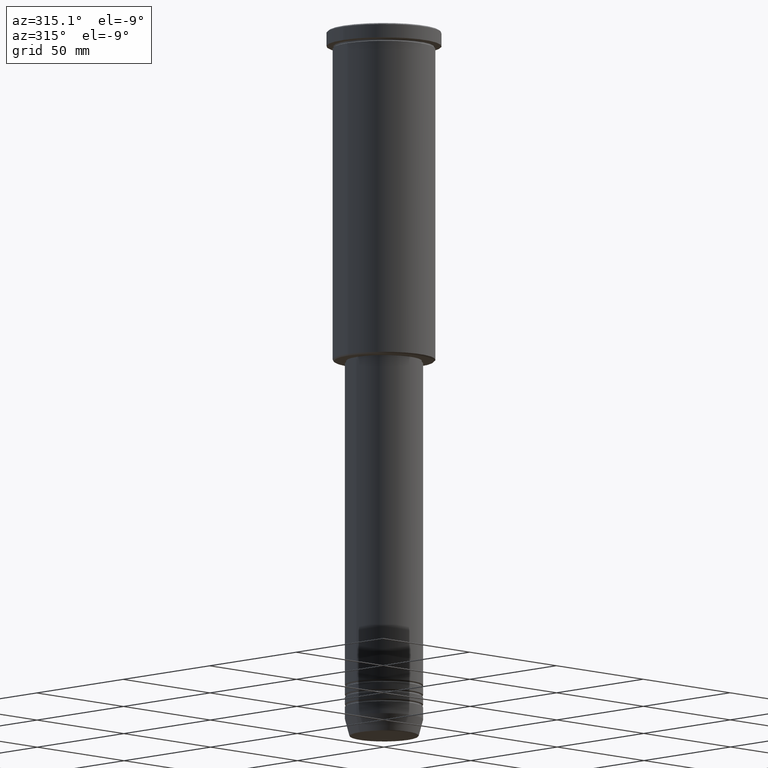
[diagram: clean part render]
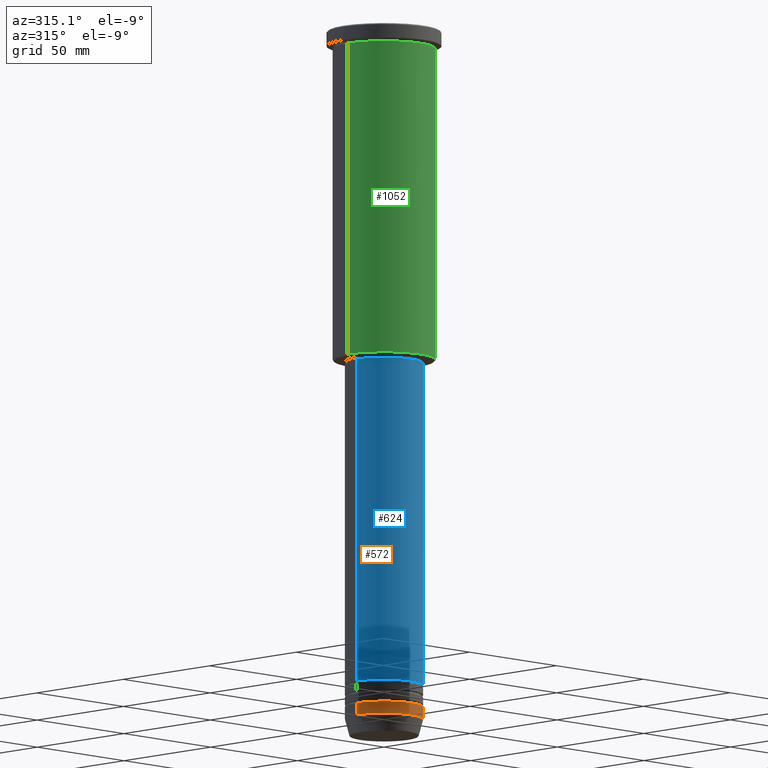
[diagram: same view with three faces highlighted in distinct colors, each labeled with its STEP entity id]
A machine part, auxiliary view with three faces highlighted in distinct colors.
Their STEP definitions:

[orange] entity #572 — the highlighted cylindrical surface (partial cylindrical patch) has radius 16 mm, axis along (-0, -0, 1).
#5 = CARTESIAN_POINT ( 'NONE',  ( -16.00000000000000000, 1.959434878635765131E-15, -279.0000000000000000 ) ) ;
#15 = DIRECTION ( 'NONE',  ( -0.000000000000000000, -0.000000000000000000, 1.000000000000000000 ) ) ;
#37 = CYLINDRICAL_SURFACE ( 'NONE', #637, 16.00000000000000000 ) ;
#78 = VECTOR ( 'NONE', #336, 1000.000000000000000 ) ;
#120 = DIRECTION ( 'NONE',  ( -0.000000000000000000, -0.000000000000000000, 1.000000000000000000 ) ) ;
#124 = VERTEX_POINT ( 'NONE', #827 ) ;
#163 = LINE ( 'NONE', #716, #78 ) ;
#188 = DIRECTION ( 'NONE',  ( 1.000000000000000000, 0.000000000000000000, 0.000000000000000000 ) ) ;
#209 = EDGE_LOOP ( 'NONE', ( #1046, #1024, #236, #1147 ) ) ;
#236 = ORIENTED_EDGE ( 'NONE', *, *, #867, .T. ) ;
#256 = DIRECTION ( 'NONE',  ( 1.000000000000000000, 0.000000000000000000, 0.000000000000000000 ) ) ;
#299 = DIRECTION ( 'NONE',  ( 1.000000000000000000, 0.000000000000000000, 0.000000000000000000 ) ) ;
#336 = DIRECTION ( 'NONE',  ( -0.000000000000000000, -0.000000000000000000, 1.000000000000000000 ) ) ;
#428 = CARTESIAN_POINT ( 'NONE',  ( 0.000000000000000000, 0.000000000000000000, -284.0000000000000568 ) ) ;
#473 = CARTESIAN_POINT ( 'NONE',  ( 0.000000000000000000, 0.000000000000000000, -279.0000000000000000 ) ) ;
#486 = VERTEX_POINT ( 'NONE', #5 ) ;
#498 = LINE ( 'NONE', #1056, #1106 ) ;
#549 = EDGE_CURVE ( 'NONE', #486, #588, #738, .T. ) ;
#572 = ADVANCED_FACE ( 'NONE', ( #749 ), #37, .T. ) ;
#588 = VERTEX_POINT ( 'NONE', #1114 ) ;
#637 = AXIS2_PLACEMENT_3D ( 'NONE', #844, #15, #299 ) ;
#665 = EDGE_CURVE ( 'NONE', #124, #486, #498, .T. ) ;
#671 = AXIS2_PLACEMENT_3D ( 'NONE', #428, #724, #256 ) ;
#716 = CARTESIAN_POINT ( 'NONE',  ( 16.00000000000000000, 0.000000000000000000, 0.000000000000000000 ) ) ;
#724 = DIRECTION ( 'NONE',  ( -0.000000000000000000, -0.000000000000000000, 1.000000000000000000 ) ) ;
#738 = CIRCLE ( 'NONE', #1088, 16.00000000000000000 ) ;
#749 = FACE_OUTER_BOUND ( 'NONE', #209, .T. ) ;
#803 = CARTESIAN_POINT ( 'NONE',  ( 16.00000000000000000, 0.000000000000000000, -284.0000000000000568 ) ) ;
#827 = CARTESIAN_POINT ( 'NONE',  ( -16.00000000000000000, 1.959434878635765131E-15, -284.0000000000000568 ) ) ;
#844 = CARTESIAN_POINT ( 'NONE',  ( 0.000000000000000000, 0.000000000000000000, 0.000000000000000000 ) ) ;
#867 = EDGE_CURVE ( 'NONE', #1123, #588, #163, .T. ) ;
#1024 = ORIENTED_EDGE ( 'NONE', *, *, #1066, .T. ) ;
#1046 = ORIENTED_EDGE ( 'NONE', *, *, #665, .F. ) ;
#1056 = CARTESIAN_POINT ( 'NONE',  ( -16.00000000000000000, 1.959434878635765131E-15, 0.000000000000000000 ) ) ;
#1064 = DIRECTION ( 'NONE',  ( -0.000000000000000000, -0.000000000000000000, 1.000000000000000000 ) ) ;
#1066 = EDGE_CURVE ( 'NONE', #124, #1123, #1090, .T. ) ;
#1088 = AXIS2_PLACEMENT_3D ( 'NONE', #473, #120, #188 ) ;
#1090 = CIRCLE ( 'NONE', #671, 16.00000000000000000 ) ;
#1106 = VECTOR ( 'NONE', #1064, 1000.000000000000000 ) ;
#1114 = CARTESIAN_POINT ( 'NONE',  ( 16.00000000000000000, 0.000000000000000000, -279.0000000000000000 ) ) ;
#1123 = VERTEX_POINT ( 'NONE', #803 ) ;
#1147 = ORIENTED_EDGE ( 'NONE', *, *, #549, .F. ) ;

[blue] entity #624 — the highlighted cylindrical surface (partial cylindrical patch) has radius 16 mm, axis along (-0, -0, 1).
#19 = CARTESIAN_POINT ( 'NONE',  ( 16.00000000000000000, 0.000000000000000000, 0.000000000000000000 ) ) ;
#55 = CARTESIAN_POINT ( 'NONE',  ( 0.000000000000000000, 0.000000000000000000, -269.9999999999998863 ) ) ;
#71 = CARTESIAN_POINT ( 'NONE',  ( -16.00000000000000000, 1.959434878635765131E-15, -269.9999999999998863 ) ) ;
#93 = EDGE_CURVE ( 'NONE', #949, #1102, #155, .T. ) ;
#128 = ORIENTED_EDGE ( 'NONE', *, *, #151, .T. ) ;
#151 = EDGE_CURVE ( 'NONE', #929, #1102, #932, .T. ) ;
#155 = CIRCLE ( 'NONE', #1012, 16.00000000000000355 ) ;
#185 = DIRECTION ( 'NONE',  ( -0.000000000000000000, -0.000000000000000000, 1.000000000000000000 ) ) ;
#197 = ORIENTED_EDGE ( 'NONE', *, *, #274, .T. ) ;
#199 = ORIENTED_EDGE ( 'NONE', *, *, #1179, .F. ) ;
#214 = ORIENTED_EDGE ( 'NONE', *, *, #93, .F. ) ;
#274 = EDGE_CURVE ( 'NONE', #877, #929, #860, .T. ) ;
#334 = CARTESIAN_POINT ( 'NONE',  ( 16.00000000000000355, 0.000000000000000000, -136.9999999999999432 ) ) ;
#384 = DIRECTION ( 'NONE',  ( -0.000000000000000000, -0.000000000000000000, 1.000000000000000000 ) ) ;
#422 = VECTOR ( 'NONE', #384, 1000.000000000000000 ) ;
#455 = CARTESIAN_POINT ( 'NONE',  ( -16.00000000000000000, 1.959434878635765131E-15, 0.000000000000000000 ) ) ;
#515 = CYLINDRICAL_SURFACE ( 'NONE', #814, 16.00000000000000000 ) ;
#597 = DIRECTION ( 'NONE',  ( 1.000000000000000000, 0.000000000000000000, 0.000000000000000000 ) ) ;
#624 = ADVANCED_FACE ( 'NONE', ( #1021 ), #515, .T. ) ;
#668 = CARTESIAN_POINT ( 'NONE',  ( 16.00000000000000000, 0.000000000000000000, -269.9999999999998863 ) ) ;
#733 = LINE ( 'NONE', #455, #859 ) ;
#777 = EDGE_LOOP ( 'NONE', ( #199, #197, #128, #214 ) ) ;
#788 = DIRECTION ( 'NONE',  ( -0.000000000000000000, -0.000000000000000000, 1.000000000000000000 ) ) ;
#814 = AXIS2_PLACEMENT_3D ( 'NONE', #953, #788, #597 ) ;
#859 = VECTOR ( 'NONE', #185, 1000.000000000000000 ) ;
#860 = CIRCLE ( 'NONE', #1014, 16.00000000000000000 ) ;
#877 = VERTEX_POINT ( 'NONE', #71 ) ;
#882 = DIRECTION ( 'NONE',  ( 1.000000000000000000, 0.000000000000000000, 0.000000000000000000 ) ) ;
#929 = VERTEX_POINT ( 'NONE', #668 ) ;
#932 = LINE ( 'NONE', #19, #422 ) ;
#949 = VERTEX_POINT ( 'NONE', #1023 ) ;
#953 = CARTESIAN_POINT ( 'NONE',  ( 0.000000000000000000, 0.000000000000000000, 0.000000000000000000 ) ) ;
#1012 = AXIS2_PLACEMENT_3D ( 'NONE', #1043, #1037, #1017 ) ;
#1014 = AXIS2_PLACEMENT_3D ( 'NONE', #55, #1062, #882 ) ;
#1017 = DIRECTION ( 'NONE',  ( 1.000000000000000000, 0.000000000000000000, 0.000000000000000000 ) ) ;
#1021 = FACE_OUTER_BOUND ( 'NONE', #777, .T. ) ;
#1023 = CARTESIAN_POINT ( 'NONE',  ( -16.00000000000000355, 1.959434878635765526E-15, -136.9999999999999432 ) ) ;
#1037 = DIRECTION ( 'NONE',  ( -0.000000000000000000, -0.000000000000000000, 1.000000000000000000 ) ) ;
#1043 = CARTESIAN_POINT ( 'NONE',  ( 0.000000000000000000, 0.000000000000000000, -136.9999999999999432 ) ) ;
#1062 = DIRECTION ( 'NONE',  ( -0.000000000000000000, -0.000000000000000000, 1.000000000000000000 ) ) ;
#1102 = VERTEX_POINT ( 'NONE', #334 ) ;
#1179 = EDGE_CURVE ( 'NONE', #877, #949, #733, .T. ) ;

[green] entity #1052 — the highlighted cylindrical surface (partial cylindrical patch) has radius 21 mm, axis along (-0, -0, 1).
#6 = CIRCLE ( 'NONE', #43, 21.00000000000000000 ) ;
#10 = ORIENTED_EDGE ( 'NONE', *, *, #497, .F. ) ;
#43 = AXIS2_PLACEMENT_3D ( 'NONE', #441, #530, #153 ) ;
#50 = EDGE_LOOP ( 'NONE', ( #1084, #648, #767, #10 ) ) ;
#113 = CARTESIAN_POINT ( 'NONE',  ( 0.000000000000000000, 0.000000000000000000, -6.999999999999993783 ) ) ;
#114 = VECTOR ( 'NONE', #858, 1000.000000000000000 ) ;
#138 = VECTOR ( 'NONE', #721, 1000.000000000000000 ) ;
#140 = CARTESIAN_POINT ( 'NONE',  ( -21.00000000000000000, 2.571758278209441661E-15, 0.000000000000000000 ) ) ;
#153 = DIRECTION ( 'NONE',  ( -1.000000000000000000, 0.000000000000000000, 0.000000000000000000 ) ) ;
#169 = FACE_OUTER_BOUND ( 'NONE', #50, .T. ) ;
#201 = DIRECTION ( 'NONE',  ( -0.000000000000000000, -0.000000000000000000, 1.000000000000000000 ) ) ;
#242 = VERTEX_POINT ( 'NONE', #510 ) ;
#368 = EDGE_CURVE ( 'NONE', #242, #943, #626, .T. ) ;
#425 = LINE ( 'NONE', #140, #114 ) ;
#438 = CIRCLE ( 'NONE', #614, 21.00000000000000000 ) ;
#441 = CARTESIAN_POINT ( 'NONE',  ( 0.000000000000000000, 0.000000000000000000, -135.5000000000000568 ) ) ;
#449 = CARTESIAN_POINT ( 'NONE',  ( 21.00000000000000000, 0.000000000000000000, 0.000000000000000000 ) ) ;
#467 = CARTESIAN_POINT ( 'NONE',  ( -21.00000000000000000, 2.571758278209441661E-15, -135.5000000000000568 ) ) ;
#469 = DIRECTION ( 'NONE',  ( 1.000000000000000000, 0.000000000000000000, 0.000000000000000000 ) ) ;
#497 = EDGE_CURVE ( 'NONE', #514, #943, #438, .T. ) ;
#510 = CARTESIAN_POINT ( 'NONE',  ( 21.00000000000000000, 0.000000000000000000, -135.5000000000000568 ) ) ;
#514 = VERTEX_POINT ( 'NONE', #1105 ) ;
#530 = DIRECTION ( 'NONE',  ( -0.000000000000000000, -0.000000000000000000, 1.000000000000000000 ) ) ;
#614 = AXIS2_PLACEMENT_3D ( 'NONE', #113, #201, #469 ) ;
#626 = LINE ( 'NONE', #449, #138 ) ;
#648 = ORIENTED_EDGE ( 'NONE', *, *, #1097, .T. ) ;
#681 = EDGE_CURVE ( 'NONE', #909, #514, #425, .T. ) ;
#721 = DIRECTION ( 'NONE',  ( -0.000000000000000000, -0.000000000000000000, 1.000000000000000000 ) ) ;
#734 = CARTESIAN_POINT ( 'NONE',  ( 21.00000000000000000, 0.000000000000000000, -6.999999999999993783 ) ) ;
#767 = ORIENTED_EDGE ( 'NONE', *, *, #368, .T. ) ;
#858 = DIRECTION ( 'NONE',  ( -0.000000000000000000, -0.000000000000000000, 1.000000000000000000 ) ) ;
#900 = CYLINDRICAL_SURFACE ( 'NONE', #925, 21.00000000000000000 ) ;
#909 = VERTEX_POINT ( 'NONE', #467 ) ;
#925 = AXIS2_PLACEMENT_3D ( 'NONE', #1081, #995, #981 ) ;
#943 = VERTEX_POINT ( 'NONE', #734 ) ;
#981 = DIRECTION ( 'NONE',  ( 1.000000000000000000, 0.000000000000000000, 0.000000000000000000 ) ) ;
#995 = DIRECTION ( 'NONE',  ( -0.000000000000000000, -0.000000000000000000, 1.000000000000000000 ) ) ;
#1052 = ADVANCED_FACE ( 'NONE', ( #169 ), #900, .T. ) ;
#1081 = CARTESIAN_POINT ( 'NONE',  ( 0.000000000000000000, 0.000000000000000000, 0.000000000000000000 ) ) ;
#1084 = ORIENTED_EDGE ( 'NONE', *, *, #681, .F. ) ;
#1097 = EDGE_CURVE ( 'NONE', #909, #242, #6, .T. ) ;
#1105 = CARTESIAN_POINT ( 'NONE',  ( -21.00000000000000000, 2.571758278209441661E-15, -6.999999999999993783 ) ) ;